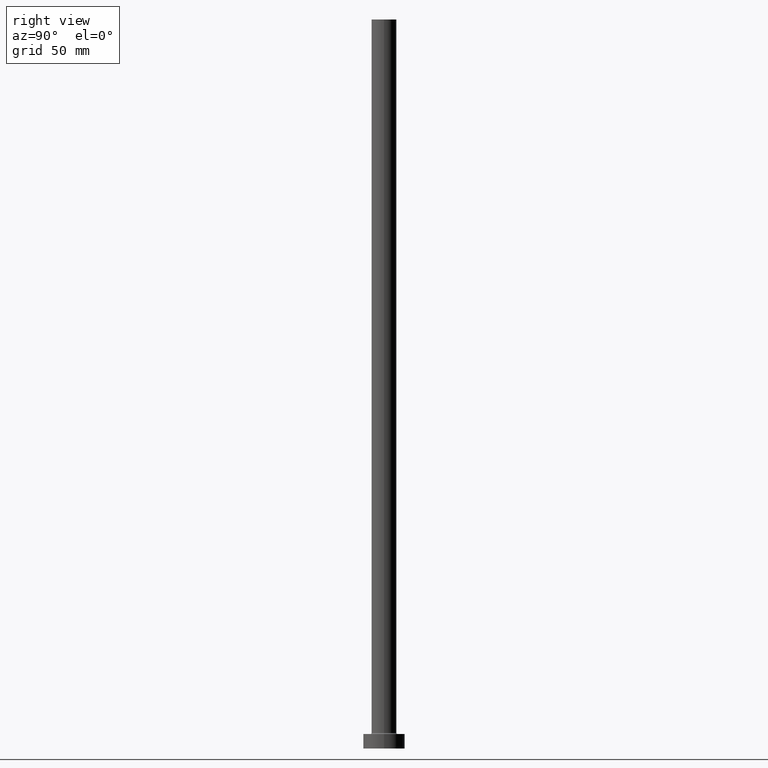
[diagram: clean part render]
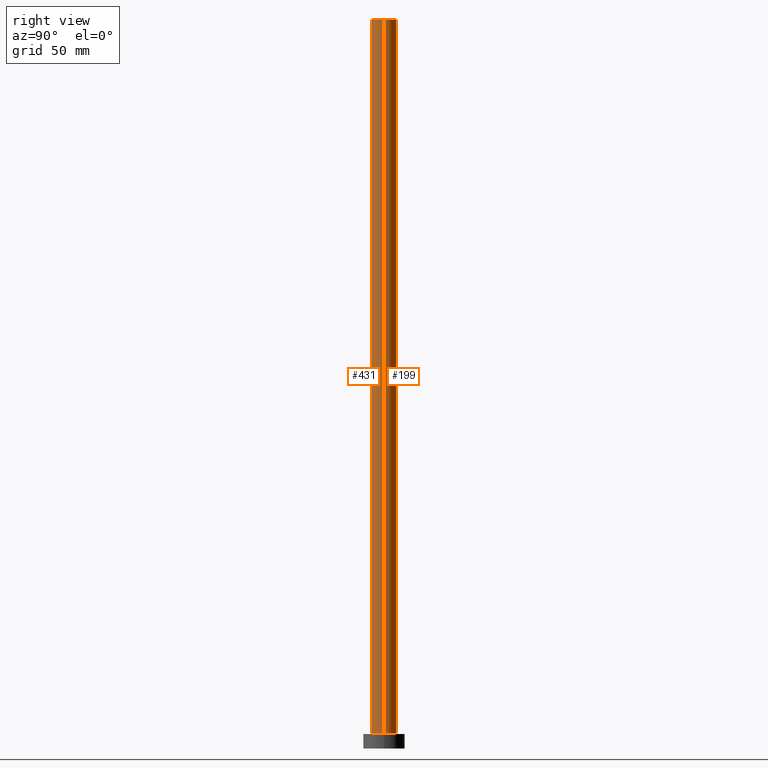
[diagram: same view with one multi-face feature highlighted, each face labeled with its STEP entity id]
A machine part, right view. The highlighted faces form ONE feature: a constant-radius fillet chain: 2 tangent blend faces with common blend radius 6 mm. The faces share edges in the B-rep.
Their STEP definitions:
[1] entity #199 (Cylinder):
#7 = VECTOR ( 'NONE', #161, 1000.000000000000000 ) ;
#9 = CARTESIAN_POINT ( 'NONE',  ( 0.000000000000000000, 0.000000000000000000, 350.0000000000000568 ) ) ;
#12 = FACE_OUTER_BOUND ( 'NONE', #389, .T. ) ;
#17 = VERTEX_POINT ( 'NONE', #249 ) ;
#21 = DIRECTION ( 'NONE',  ( -0.000000000000000000, -0.000000000000000000, -1.000000000000000000 ) ) ;
#31 = ORIENTED_EDGE ( 'NONE', *, *, #367, .T. ) ;
#53 = CARTESIAN_POINT ( 'NONE',  ( 6.000000000000000888, 7.347880794884120722E-16, 350.0000000000000568 ) ) ;
#79 = DIRECTION ( 'NONE',  ( 1.000000000000000000, 0.000000000000000000, 0.000000000000000000 ) ) ;
#82 = DIRECTION ( 'NONE',  ( 0.000000000000000000, 0.000000000000000000, 1.000000000000000000 ) ) ;
#95 = LINE ( 'NONE', #53, #380 ) ;
#99 = DIRECTION ( 'NONE',  ( 1.000000000000000000, 0.000000000000000000, 0.000000000000000000 ) ) ;
#117 = EDGE_CURVE ( 'NONE', #291, #17, #311, .T. ) ;
#122 = LINE ( 'NONE', #376, #7 ) ;
#126 = AXIS2_PLACEMENT_3D ( 'NONE', #9, #82, #79 ) ;
#142 = ORIENTED_EDGE ( 'NONE', *, *, #298, .T. ) ;
#161 = DIRECTION ( 'NONE',  ( -0.000000000000000000, -0.000000000000000000, -1.000000000000000000 ) ) ;
#179 = ORIENTED_EDGE ( 'NONE', *, *, #117, .F. ) ;
#199 = ADVANCED_FACE ( 'NONE', ( #12 ), #358, .T. ) ;
#249 = CARTESIAN_POINT ( 'NONE',  ( -6.000000000000000888, 0.000000000000000000, 350.0000000000000568 ) ) ;
#266 = CARTESIAN_POINT ( 'NONE',  ( 0.000000000000000000, 0.000000000000000000, 350.0000000000000568 ) ) ;
#271 = CARTESIAN_POINT ( 'NONE',  ( 6.000000000000000888, 7.347880794884120722E-16, 7.500000000000007105 ) ) ;
#291 = VERTEX_POINT ( 'NONE', #410 ) ;
#298 = EDGE_CURVE ( 'NONE', #291, #349, #95, .T. ) ;
#301 = DIRECTION ( 'NONE',  ( -0.000000000000000000, -0.000000000000000000, -1.000000000000000000 ) ) ;
#304 = EDGE_CURVE ( 'NONE', #17, #357, #122, .T. ) ;
#311 = CIRCLE ( 'NONE', #126, 6.000000000000000888 ) ;
#330 = AXIS2_PLACEMENT_3D ( 'NONE', #451, #415, #99 ) ;
#337 = DIRECTION ( 'NONE',  ( -1.000000000000000000, 0.000000000000000000, 0.000000000000000000 ) ) ;
#349 = VERTEX_POINT ( 'NONE', #271 ) ;
#357 = VERTEX_POINT ( 'NONE', #412 ) ;
#358 = CYLINDRICAL_SURFACE ( 'NONE', #433, 6.000000000000000888 ) ;
#364 = CIRCLE ( 'NONE', #330, 6.000000000000000888 ) ;
#367 = EDGE_CURVE ( 'NONE', #349, #357, #364, .T. ) ;
#376 = CARTESIAN_POINT ( 'NONE',  ( -6.000000000000000888, 0.000000000000000000, 350.0000000000000568 ) ) ;
#380 = VECTOR ( 'NONE', #21, 1000.000000000000000 ) ;
#389 = EDGE_LOOP ( 'NONE', ( #179, #142, #31, #393 ) ) ;
#393 = ORIENTED_EDGE ( 'NONE', *, *, #304, .F. ) ;
#410 = CARTESIAN_POINT ( 'NONE',  ( 6.000000000000000888, 7.347880794884120722E-16, 350.0000000000000568 ) ) ;
#412 = CARTESIAN_POINT ( 'NONE',  ( -6.000000000000000888, 0.000000000000000000, 7.500000000000007105 ) ) ;
#415 = DIRECTION ( 'NONE',  ( 0.000000000000000000, 0.000000000000000000, 1.000000000000000000 ) ) ;
#433 = AXIS2_PLACEMENT_3D ( 'NONE', #266, #301, #337 ) ;
#451 = CARTESIAN_POINT ( 'NONE',  ( 0.000000000000000000, 0.000000000000000000, 7.500000000000007105 ) ) ;
[2] entity #431 (Cylinder):
#2 = CARTESIAN_POINT ( 'NONE',  ( 0.000000000000000000, 0.000000000000000000, 350.0000000000000568 ) ) ;
#7 = VECTOR ( 'NONE', #161, 1000.000000000000000 ) ;
#17 = VERTEX_POINT ( 'NONE', #249 ) ;
#21 = DIRECTION ( 'NONE',  ( -0.000000000000000000, -0.000000000000000000, -1.000000000000000000 ) ) ;
#26 = CYLINDRICAL_SURFACE ( 'NONE', #237, 6.000000000000000888 ) ;
#36 = AXIS2_PLACEMENT_3D ( 'NONE', #378, #200, #245 ) ;
#41 = ORIENTED_EDGE ( 'NONE', *, *, #57, .F. ) ;
#53 = CARTESIAN_POINT ( 'NONE',  ( 6.000000000000000888, 7.347880794884120722E-16, 350.0000000000000568 ) ) ;
#57 = EDGE_CURVE ( 'NONE', #17, #291, #239, .T. ) ;
#95 = LINE ( 'NONE', #53, #380 ) ;
#110 = FACE_OUTER_BOUND ( 'NONE', #125, .T. ) ;
#122 = LINE ( 'NONE', #376, #7 ) ;
#125 = EDGE_LOOP ( 'NONE', ( #360, #41, #220, #286 ) ) ;
#161 = DIRECTION ( 'NONE',  ( -0.000000000000000000, -0.000000000000000000, -1.000000000000000000 ) ) ;
#176 = DIRECTION ( 'NONE',  ( -0.000000000000000000, -0.000000000000000000, -1.000000000000000000 ) ) ;
#198 = CIRCLE ( 'NONE', #36, 6.000000000000000888 ) ;
#200 = DIRECTION ( 'NONE',  ( 0.000000000000000000, 0.000000000000000000, 1.000000000000000000 ) ) ;
#202 = DIRECTION ( 'NONE',  ( 1.000000000000000000, 0.000000000000000000, 0.000000000000000000 ) ) ;
#220 = ORIENTED_EDGE ( 'NONE', *, *, #304, .T. ) ;
#234 = AXIS2_PLACEMENT_3D ( 'NONE', #387, #384, #202 ) ;
#237 = AXIS2_PLACEMENT_3D ( 'NONE', #2, #176, #390 ) ;
#239 = CIRCLE ( 'NONE', #234, 6.000000000000000888 ) ;
#245 = DIRECTION ( 'NONE',  ( 1.000000000000000000, 0.000000000000000000, 0.000000000000000000 ) ) ;
#249 = CARTESIAN_POINT ( 'NONE',  ( -6.000000000000000888, 0.000000000000000000, 350.0000000000000568 ) ) ;
#271 = CARTESIAN_POINT ( 'NONE',  ( 6.000000000000000888, 7.347880794884120722E-16, 7.500000000000007105 ) ) ;
#286 = ORIENTED_EDGE ( 'NONE', *, *, #445, .T. ) ;
#291 = VERTEX_POINT ( 'NONE', #410 ) ;
#298 = EDGE_CURVE ( 'NONE', #291, #349, #95, .T. ) ;
#304 = EDGE_CURVE ( 'NONE', #17, #357, #122, .T. ) ;
#349 = VERTEX_POINT ( 'NONE', #271 ) ;
#357 = VERTEX_POINT ( 'NONE', #412 ) ;
#360 = ORIENTED_EDGE ( 'NONE', *, *, #298, .F. ) ;
#376 = CARTESIAN_POINT ( 'NONE',  ( -6.000000000000000888, 0.000000000000000000, 350.0000000000000568 ) ) ;
#378 = CARTESIAN_POINT ( 'NONE',  ( 0.000000000000000000, 0.000000000000000000, 7.500000000000007105 ) ) ;
#380 = VECTOR ( 'NONE', #21, 1000.000000000000000 ) ;
#384 = DIRECTION ( 'NONE',  ( 0.000000000000000000, 0.000000000000000000, 1.000000000000000000 ) ) ;
#387 = CARTESIAN_POINT ( 'NONE',  ( 0.000000000000000000, 0.000000000000000000, 350.0000000000000568 ) ) ;
#390 = DIRECTION ( 'NONE',  ( -1.000000000000000000, 0.000000000000000000, 0.000000000000000000 ) ) ;
#410 = CARTESIAN_POINT ( 'NONE',  ( 6.000000000000000888, 7.347880794884120722E-16, 350.0000000000000568 ) ) ;
#412 = CARTESIAN_POINT ( 'NONE',  ( -6.000000000000000888, 0.000000000000000000, 7.500000000000007105 ) ) ;
#431 = ADVANCED_FACE ( 'NONE', ( #110 ), #26, .T. ) ;
#445 = EDGE_CURVE ( 'NONE', #357, #349, #198, .T. ) ;